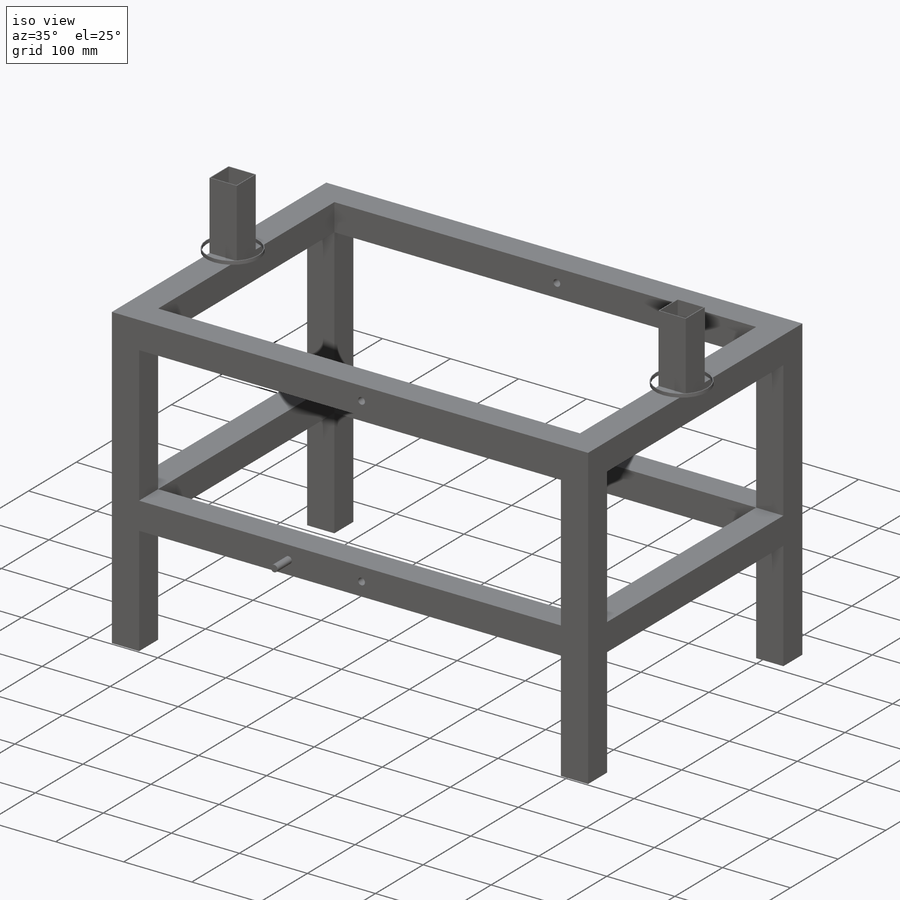
[diagram: iso view]
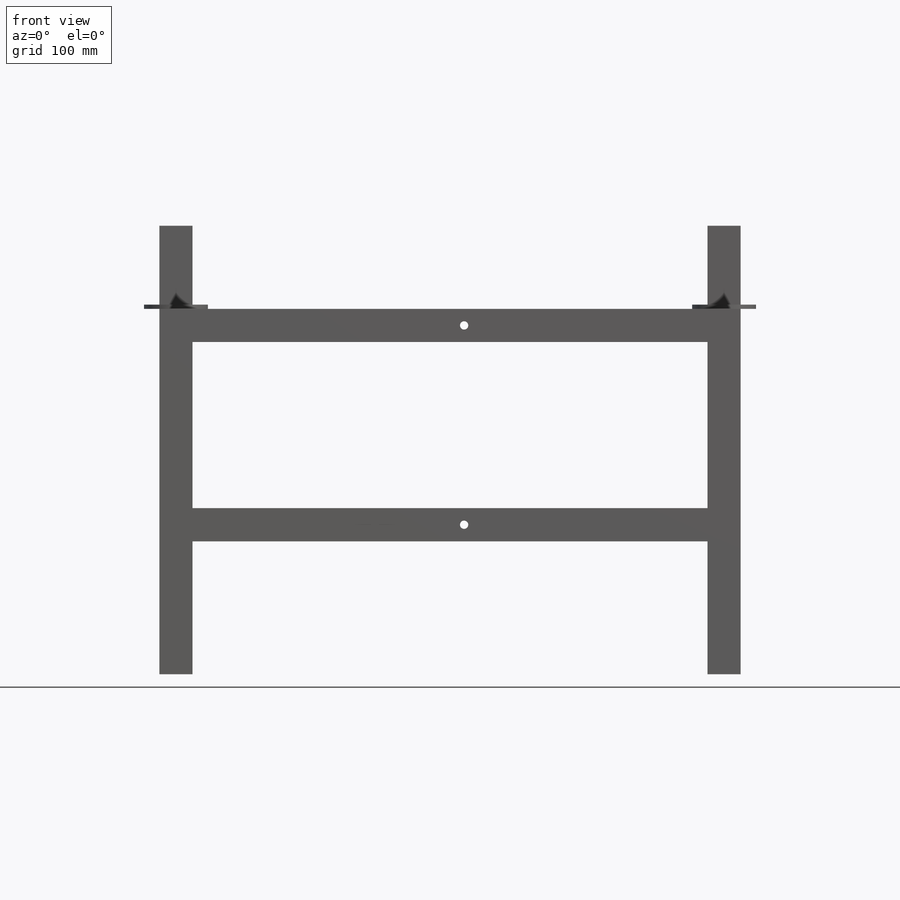
[diagram: front view]
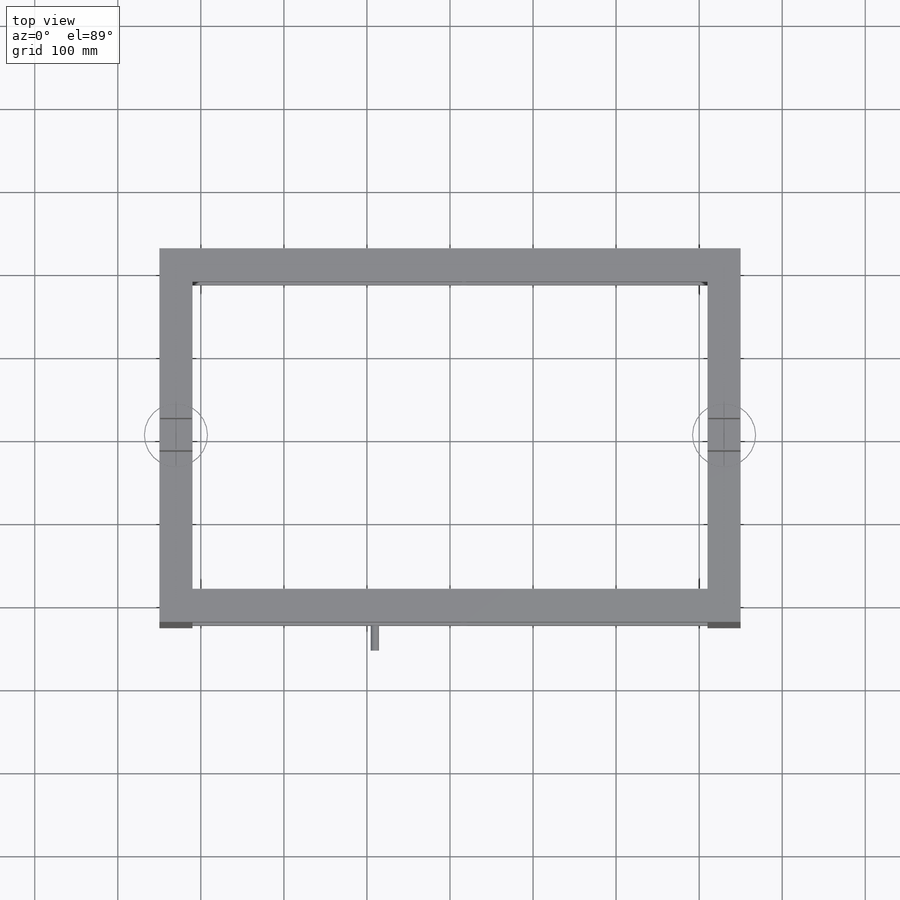
[diagram: top view]
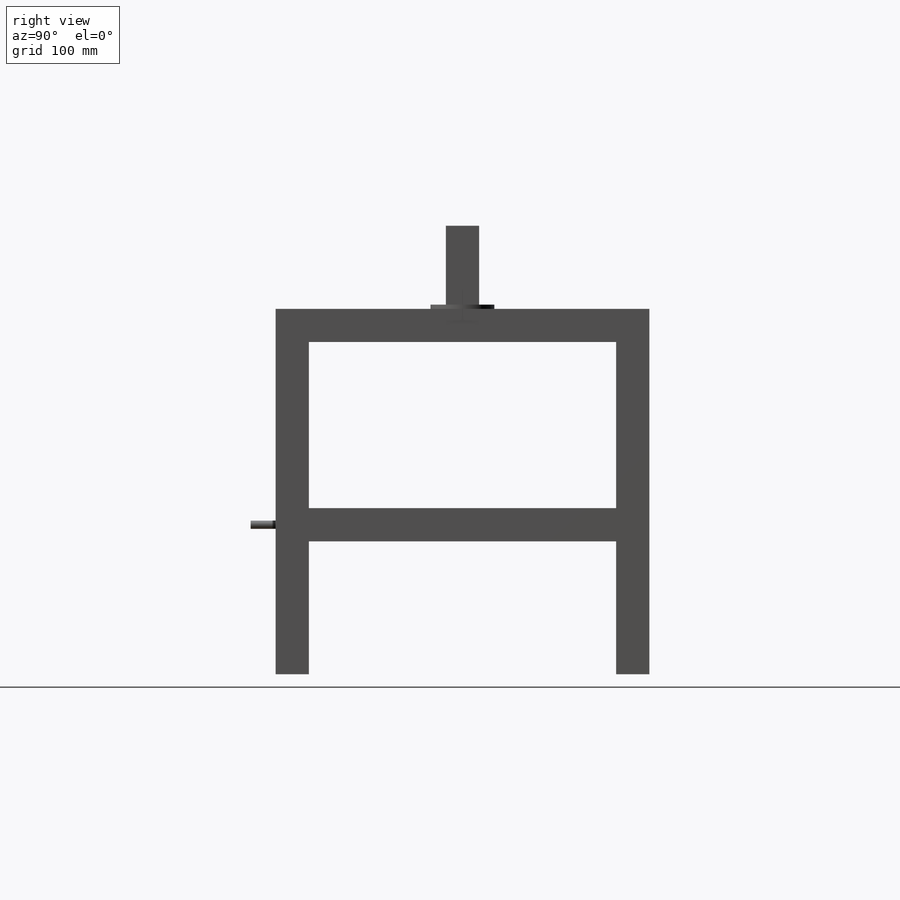
[diagram: right view]
SOLIDWORKS PART (.sldprt)
format: sldprt  version: not decoded by parser v0  size: 434,176 bytes
history: native  units: mm
features: sketch x8, extrude x6, cut_extrude x2, material x1 (+12 scaffold rows collapsed)
feature tree (29):
  scaffold x12  (default folders/planes/origin — collapsed)
  material  "Material <not specified>"
  sketch  "Sketch1"  dims[c1.D1=700.0mm c1.D2=450.0mm c1.D3=40.0mm c1.D4=40.0mm c1.D5=40.0mm c1.D6=~51.716861mm c2.D6=~116.565051deg c3.D6=40.0mm c3.D7=40.0mm c3.D8=40.0mm c3.D9=40.0mm c3.D10=40.0mm c3.D11=1.0mm]
  extrude  "Boss-Extrude1"  Depth=400mm
  sketch  "Sketch2"
  extrude  "Boss-Extrude2"  Depth=40mm
  sketch  "Sketch3"  dims[D1=40.0mm D2=40.0mm D3=1.0mm D4=1.0mm]
  extrude  "Boss-Extrude4"  Depth=100mm
  sketch  "Sketch4"  dims[D3=10.0mm D1=367.0mm D2=20.0mm]
  cut_extrude  "Cut-Extrude1"  Depth=465mm
  sketch  "Sketch5"
  extrude  "Boss-Extrude5"  Depth=40mm
  sketch  "Sketch6"  dims[D2=10.0mm D1=20.0mm D3=367.0mm]
  cut_extrude  "Cut-Extrude2"  Depth=508mm
  sketch  "Sketch7"  dims[D1=75.0mm D2=20.0mm D3=19.0mm D4=1.0mm]
  extrude  "Boss-Extrude6"  Depth=5mm
  sketch  "Sketch8"  dims[D1=10.0mm D2=20.0mm]
  extrude  "Boss-Extrude7"  Depth=30mm
decode coverage: 14 of 16 modeling features carry decoded parameters
note: ~ marks probable driven/reference dimensions
note: suppression state not decoded; provenance and decode notes live in map.json
